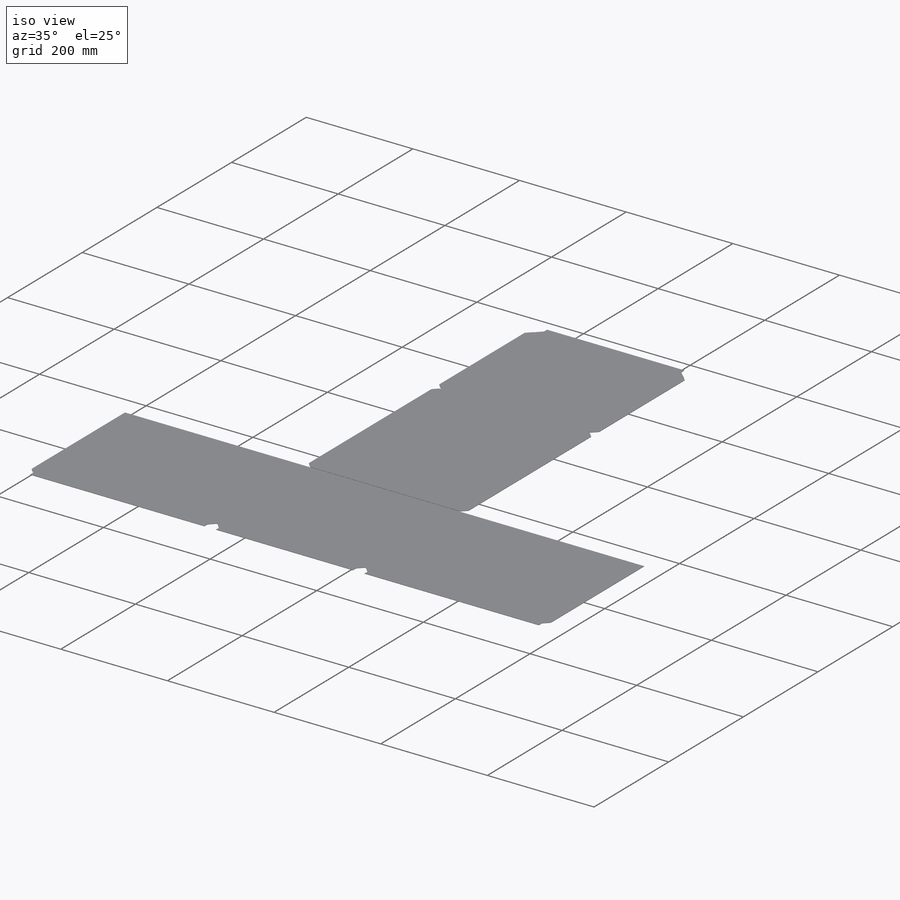
[diagram: iso view]
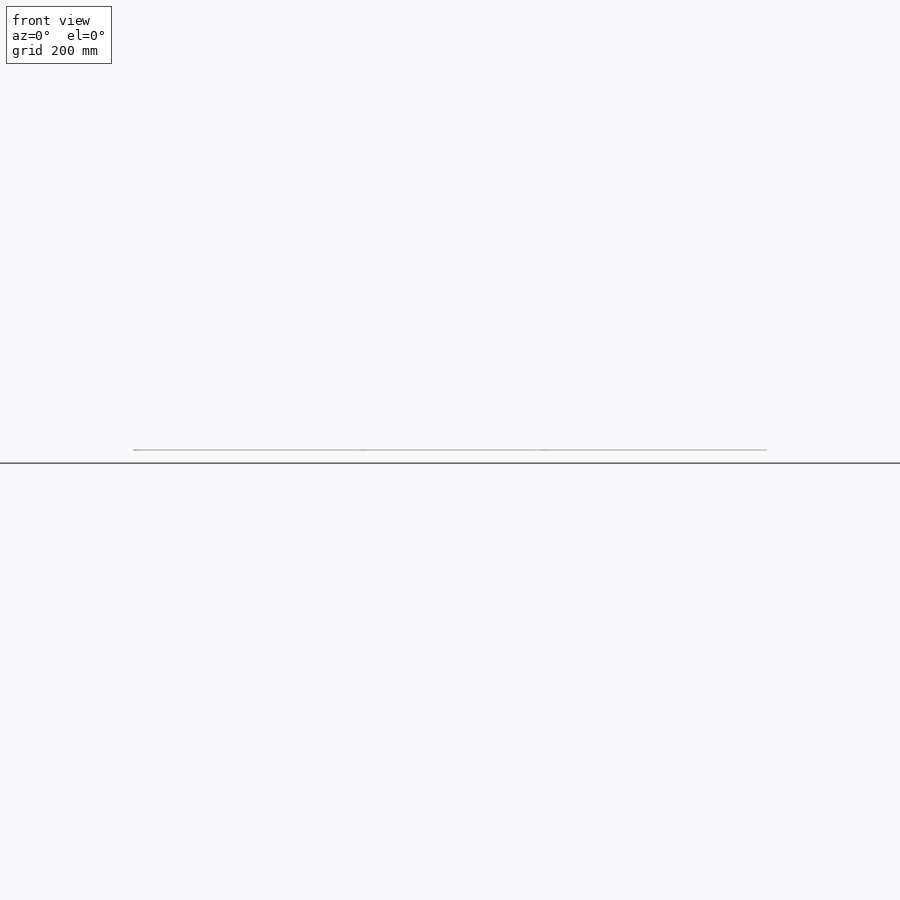
[diagram: front view]
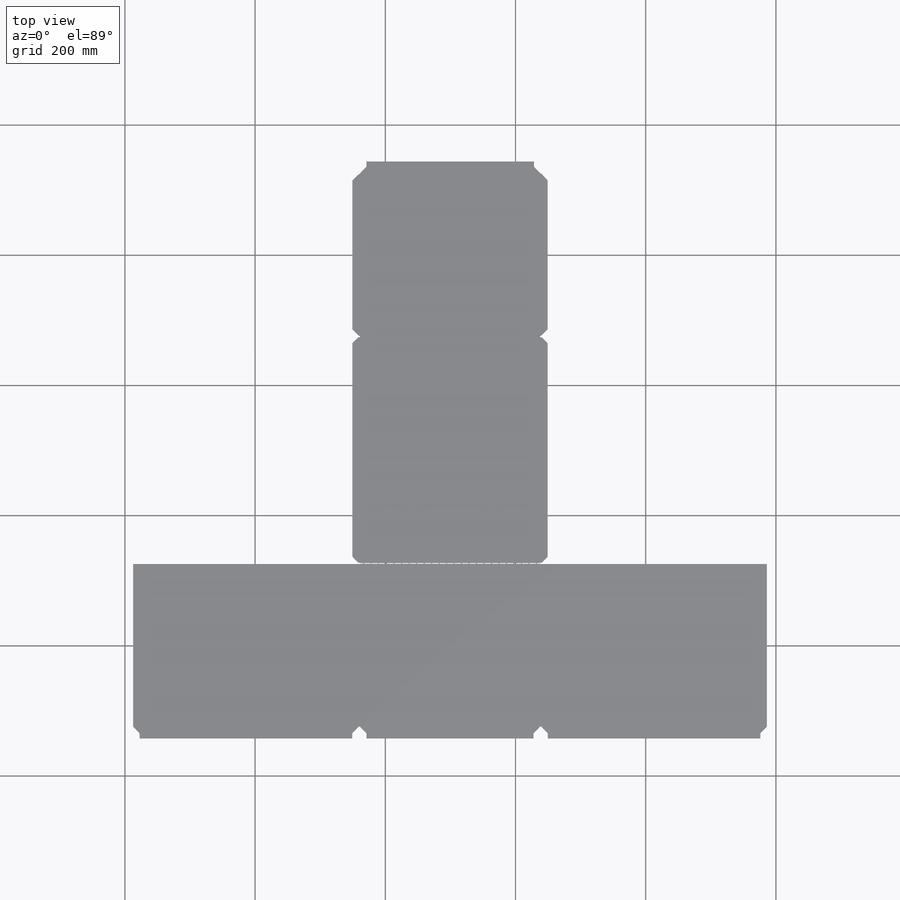
[diagram: top view]
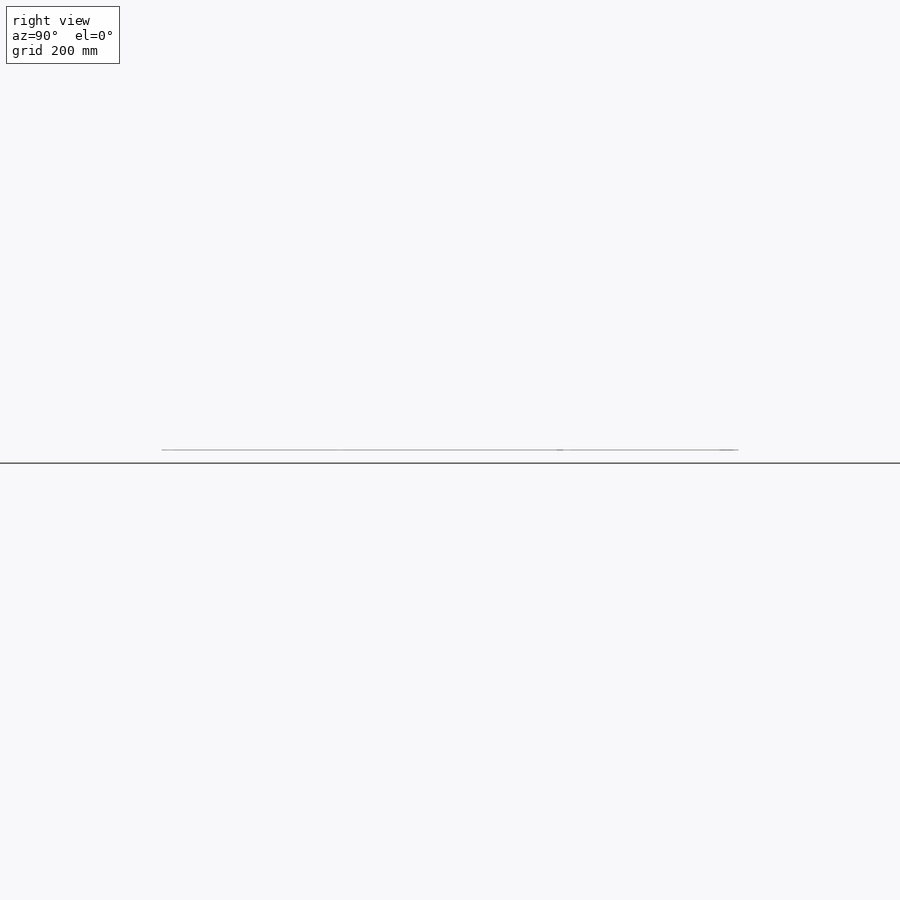
[diagram: right view]
SOLIDWORKS PART (.sldprt)
format: sldprt  version: not decoded by parser v0  size: 2,342,912 bytes
history: native  units: mm
features: sketch x33, sheet_metal_op x22, move_body x5, cut_extrude x4, extrude x4, plane x3, material x1 + 16 further entries (+8 scaffold rows collapsed; 6 parser-record rows omitted)
feature tree (102):
  scaffold x8  (default folders/planes/origin — collapsed)
  material  " 1.4301 2B"
  plane  "Ebene vorne"
  plane  "Ebene oben"
  plane  "Ebene rechts"
  sketch  "Skizze1"  dims[D1=280.0mm D2=250.0mm]
  sheet_metal_op  "Blech1"
  sheet_metal_op  "Basis-Blech1"
  move_body  "Körper-Verschieben/Kopieren1"
  sketch  "Skizze32"
  sketch  "Skizze33"  dims[D1=1.0mm D4=90.0deg D5=1.0 D8=0.35mm D9=0.35mm]
  sheet_metal_op  "Kantenbiegung10"
  sheet_metal_op  "Kante-Lasche6"
  sketch  "Skizze38"
  sheet_metal_op  "Kantenbiegung11"
  sheet_metal_op  "Kante-Lasche7"
  sketch  "Skizze41"
  sheet_metal_op  "Kantenbiegung15"
  parser-record x6  (decoder bookkeeping rows leaked as tree rows — omitted from the tree; the rows remain in map.json)
  sketch  "Skizze42"  dims[c1.D1=10.0mm c1.D2=1.1mm c1.D3=0.4mm c1.D4=7.5mm c1.D5=1.5mm c1.D6=0.4mm c1.D7=1.5mm c1.D8=1.5mm c1.D9=1.5mm c1.D10=1.5mm c1.D11=10.0mm c1.D12=10.0mm c1.D13=10.0mm c1.D14=10.0mm c1.D15=1.5mm c1.D17=1.5mm c1.D18=~0.885247mm c2.D4=4.8mm c2.D18=~412.401381mm c3.D18=90.0deg c3.D16=17.0]
  cut_extrude  "Schnitt-Linear austragen1"  Depth=10mm
  sketch  "Skizze43"
  extrude  "Aufsatz-Linear austragen1"  Depth=1.7mm
  sketch  "Skizze44"
  extrude  "Aufsatz-Linear austragen2"  Depth=1.7mm
  sheet_metal_op  "Kante-Lasche8"
  sketch  "Skizze49"
  sketch  "Skizze50"
  sheet_metal_op  "Kantenbiegung13"
  sheet_metal_op  "Kantenbiegung14"
  sketch  "Skizze52"
  cut_extrude  "Schnitt-Linear austragen4"  Depth=1.7mm
  sketch  "Skizze53"
  extrude  "Aufsatz-Linear austragen3"  Depth=1.7mm
  sketch  "Skizze66"  dims[D1=1.7mm D2=249.0mm]
  extrude  "Aufsatz-Linear austragen5"  Depth=0.7mm
  sketch  "Skizze69"
  cut_extrude  "Schnitt-Linear austragen6"  Depth=1.7mm
  sketch  "Skizze52-4"
  sketch  "Skizze66-1"  dims[D1=1.7mm D2=249.0mm]
  sketch  "Skizze69-1"
  sheet_metal_op  "Kante-Lasche9"
  sketch  "Skizze75"
  sheet_metal_op  "Kantenbiegung24"
  sheet_metal_op  "Kante-Lasche10"
  sketch  "Skizze79"
  sheet_metal_op  "Kantenbiegung26"
  sheet_metal_op  "Kante-Lasche11"
  sketch  "Skizze92"
  sheet_metal_op  "Kantenbiegung31"
  sheet_metal_op  "Kante-Lasche12"
  sketch  "Skizze100"
  sheet_metal_op  "Kantenbiegung36"
  sheet_metal_op  "Kante-Lasche13"
  sketch  "Skizze103"
  sheet_metal_op  "Kantenbiegung37"
  sheet_metal_op  "Kante-Lasche14"
  sketch  "Skizze106"
  sheet_metal_op  "Kantenbiegung38"
  sketch  "Skizze111"
  sketch  "Skizze113"
  sketch  "Skizze115"
  sketch  "Skizze117"
  move_body  "Blechkantenrand-Biegung1"
  move_body  "Blechkantenrand-Biegung2"
  move_body  "Blechkantenrand-Biegung3"
  move_body  "Blechkantenrand-Biegung4"
  sketch  "Skizze52-5"
  sketch  "Skizze66-2"  dims[D1=1.7mm D2=249.0mm]
  sketch  "Skizze69-2"
  sketch  "Skizze121"  dims[c1.D16=7.0mm c1.D1=30.0mm c1.D2=30.0mm c1.D3=30.0mm c1.D4=30.0mm c1.D5=30.0mm c1.D6=30.0mm c1.D7=25.0mm c1.D8=5.0mm c1.D9=30.0mm c2.D9=~63.434949deg c3.D9=30.0mm c4.D9=~63.434949deg c5.D9=~33.54102mm c5.D6=30.0mm c6.D9=~33.54102mm c6.D2=30.0mm c6.D4=30.0mm c7.D9=109.5mm c7.D10=82.0mm c7.D1=120.0mm c7.D2=120.0mm c7.D3=40.0mm c7.D4=7.0mm c7.D5=7.0mm c7.D6=7.0mm c7.D7=0.8mm c7.D8=0.5mm c8.D7=0.8mm c8.D8=~4.041452mm c8.D9=~1.414818mm c8.D2=~1.225534mm c8.D16=178.3mm c8.D17=~67.483895mm c8.D18=~69.504621mm c8.D19=~71.525347mm c8.D20=~72.233895mm c8.D21=~73.546073mm c8.D22=~74.254621mm c8.D23=~75.566798mm c8.D24=~76.983895mm c8.D25=~78.296073mm c8.D26=~79.004621mm c8.D27=~80.316798mm c8.D28=~81.733895mm c8.D29=~81.766596mm c8.D30=~83.046073mm c8.D31=~83.754621mm c8.D32=~83.787321mm c8.D33=~85.066798mm c8.D34=~86.483895mm c8.D35=~87.796073mm c8.D36=~87.828773mm c8.D37=~88.504621mm c8.D38=~89.816798mm c8.D39=~89.849499mm c8.D40=~91.233895mm c8.D41=~91.299296mm c8.D42=~92.546073mm c8.D43=~93.254621mm c8.D44=~93.320022mm c8.D45=~94.566798mm c8.D46=~95.983895mm c8.D47=~97.296073mm c8.D48=~97.361474mm c8.D49=~98.004621mm c8.D50=~99.316798mm c8.D51=99.3822mm c8.D52=~100.733895mm c8.D53=~100.831997mm c8.D54=~102.046073mm c8.D55=~102.754621mm c8.D56=~102.852723mm c8.D57=~104.066798mm c8.D58=~105.483895mm c8.D59=~106.796073mm c8.D60=~106.894175mm c8.D61=~107.504621mm c8.D62=~108.816798mm c8.D63=~108.914901mm c8.D64=~110.233895mm c8.D65=~110.364698mm c8.D66=~111.546073mm c8.D67=~112.254621mm c8.D68=~112.385424mm c8.D69=~113.566798mm c8.D70=~114.983895mm c8.D71=~116.296073mm c8.D72=~116.426876mm c8.D73=~117.004621mm c8.D74=~118.316798mm c8.D75=~118.447602mm c8.D76=~119.733761mm c8.D77=~119.733895mm c8.D78=~119.759958mm c8.D79=~119.897399mm c8.D80=~121.046073mm c8.D81=~121.754487mm c8.D82=~121.754621mm c8.D83=~121.780684mm c8.D84=~121.918125mm c8.D85=~123.066798mm c8.D86=~124.483714mm c8.D87=~124.483895mm c8.D88=~124.501193mm c8.D89=~125.795939mm c8.D90=~125.796073mm c8.D91=~125.822136mm c8.D92=~125.959577mm c8.D93=~126.50444mm c8.D94=~126.504621mm c8.D95=~126.521919mm c8.D96=~127.816665mm c8.D97=~127.816798mm c8.D98=~127.842861mm c8.D99=~127.980303mm c8.D100=~129.233717mm c8.D101=~129.233895mm c8.D102=~129.242429mm c8.D103=129.4301mm c8.D104=~130.545892mm c8.D105=~130.546073mm c8.D106=~130.563371mm c8.D107=~131.254442mm c8.D108=~131.254621mm c8.D109=~131.263155mm c8.D110=~131.450826mm c8.D111=~132.566618mm c8.D112=~132.566798mm c8.D113=~132.584097mm c8.D114=~133.983664mm c8.D115=~133.983893mm c8.D116=~135.295894mm c8.D117=~135.296073mm c8.D118=~135.304607mm c8.D119=~135.492278mm c8.D120=~136.00439mm c8.D121=~136.004619mm c8.D122=~137.31662mm c8.D123=~137.316798mm c8.D124=~137.325333mm c8.D125=~137.513004mm c8.D126=138.7249mm c8.D127=~138.733672mm c8.D128=~138.733895mm c8.D129=~138.962801mm c8.D130=~140.045842mm c8.D131=~140.046071mm c8.D132=~140.745626mm c8.D133=~140.754398mm c8.D134=~140.754621mm c8.D135=~140.983527mm c8.D136=~142.066568mm c8.D137=~142.066797mm c8.D138=~143.466135mm c8.D139=~143.483706mm c8.D140=~143.483893mm c8.D141=~144.787078mm c8.D142=~144.79585mm c8.D143=~144.796073mm c8.D144=~145.024979mm c8.D145=~145.486861mm c8.D146=~145.504432mm c8.D147=~145.504619mm c8.D148=~146.807804mm c8.D149=~146.816576mm c8.D150=~146.816798mm c8.D151=~147.045704mm c8.D152=~148.207371mm c8.D153=~148.233893mm c8.D154=~148.495502mm c8.D155=~149.528313mm c8.D156=~149.545884mm c8.D157=~149.546071mm c8.D158=~150.228097mm c8.D159=~150.254619mm c8.D160=~150.516228mm c8.D161=~151.549039mm c8.D162=~151.56661mm c8.D163=~151.566797mm c8.D164=~152.948606mm c8.D165=~152.983621mm c8.D166=~152.983893mm c8.D167=~154.269549mm c8.D168=~154.296071mm c8.D169=~154.557679mm c8.D170=~154.969332mm c8.D171=~155.004347mm c8.D172=~155.004619mm c8.D173=~156.290275mm c8.D174=~156.316797mm c8.D175=~156.578405mm c8.D176=~157.689842mm c8.D177=~158.028202mm c8.D178=~159.010784mm c8.D179=~159.045799mm c8.D180=~159.046071mm c8.D181=~159.710568mm c8.D182=~160.048928mm c8.D183=~161.03151mm c8.D184=~161.066525mm c8.D185=~161.066797mm c8.D186=~162.431077mm c8.D187=~162.483893mm c8.D188=~163.75202mm c8.D189=~164.09038mm c8.D190=~164.451803mm c8.D191=~164.504619mm c8.D192=~165.772746mm c8.D193=~166.111106mm c8.D194=~167.172313mm c8.D195=~168.493255mm c8.D196=~168.546071mm c8.D197=~169.193039mm c8.D198=~170.513981mm c8.D199=~170.566797mm c8.D200=~171.913548mm c8.D201=~173.234491mm c8.D202=~173.934274mm c8.D203=~175.255217mm c8.D204=175.955mm c8.D205=~177.975726mm c8.D206=~179.996452mm c8.D207=~257.483892mm c8.D208=~259.504618mm c8.D209=~263.546069mm c8.D210=~265.566795mm c8.D211=~352.48389mm c8.D212=~354.504616mm c8.D213=~358.546068mm c8.D214=~360.566794mm c8.D215=~447.483888mm c8.D216=~449.504614mm c8.D217=~453.546066mm c8.D218=~455.566792mm c8.D219=~542.483887mm c8.D220=~544.504613mm c8.D221=~548.546065mm c8.D222=~550.566791mm c8.D223=~637.483885mm c8.D224=~639.504611mm c8.D225=~643.546063mm c8.D226=~645.566789mm c8.D227=~732.483884mm c8.D228=~734.50461mm c8.D229=~738.546062mm c8.D230=~740.566788mm c8.D231=~827.483882mm c8.D232=~829.504608mm c8.D233=~833.54606mm c8.D234=~835.566786mm c8.D235=~922.483881mm c8.D236=~924.504607mm c8.D237=~928.546059mm c8.D238=~930.566784mm c8.D239=~1017.483879mm c8.D240=~1019.504605mm c8.D241=~1023.546057mm c8.D242=~1025.566783mm c9.D17=~1025.566783mm c9.D5=12.0 c9.D8=11.0 c9.D9=11.0 c9.D1=10.0 c9.D2=10.0 c9.D3=9.0 c9.D7=8.0 c9.D10=7.0 c9.D11=6.0 c9.D12=5.0 c9.D13=5.0 c9.D14=3.0 c9.D15=2.0]
  cut_extrude  "Schnitt-Linear austragen7"  Depth=10mm
  "Abwicklung1"
  sketch  "Biegung-Linien1"
  sketch  "Rahmen1"
  "Abwickeln-<Kantenbiegung10>1"
  "Abwickeln-<Kantenbiegung11>1"
  "Abwickeln-<Kantenbiegung13>1"
  "Abwickeln-<Kantenbiegung14>1"
  "Abwickeln-<Kantenbiegung15>1"
  "Abwickeln-<Kantenbiegung24>1"
  "Abwickeln-<Kantenbiegung26>1"
  "Abwickeln-<Kantenbiegung31>1"
  "Abwickeln-<Kantenbiegung36>1"
  "Abwickeln-<Kantenbiegung37>1"
  "Abwickeln-<Kantenbiegung38>1"
  "Abwickeln-<Blechkantenrand-Biegung1>1"
  "Abwickeln-<Blechkantenrand-Biegung2>1"
  "Abwickeln-<Blechkantenrand-Biegung3>1"
  "Abwickeln-<Blechkantenrand-Biegung4>1"
decode coverage: 15 of 68 modeling features carry decoded parameters; 16 rows unclassified (native names shown)
note: ~ marks probable driven/reference dimensions
note: suppression state not decoded; provenance and decode notes live in map.json
